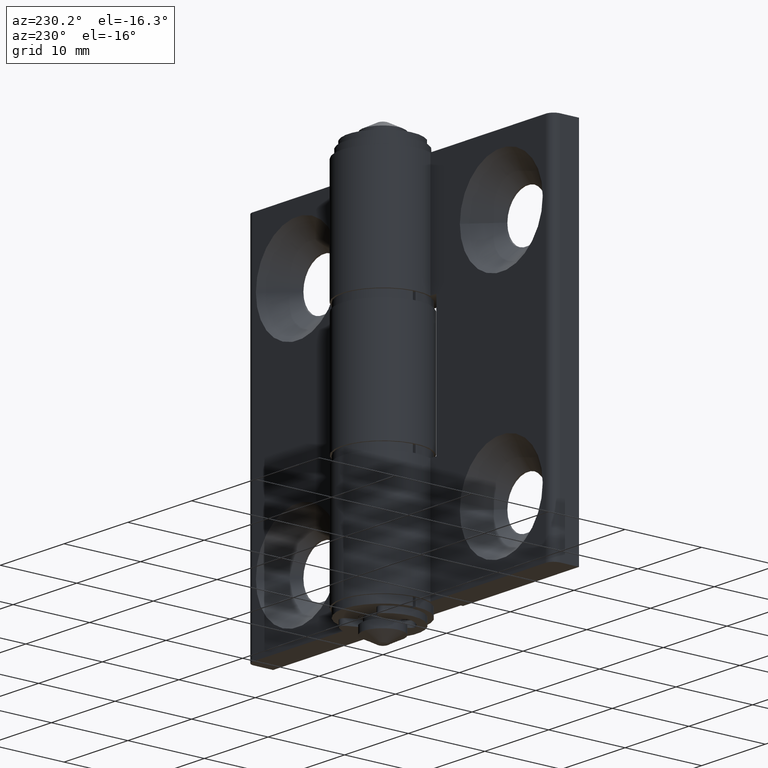
[diagram: clean part render]
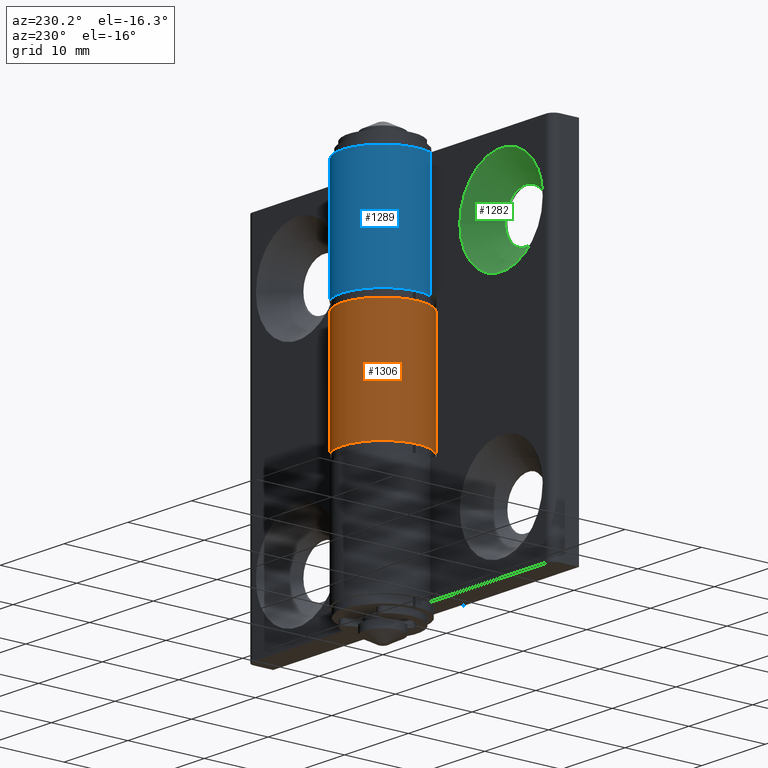
[diagram: same view with three faces highlighted in distinct colors, each labeled with its STEP entity id]
A machine part, auxiliary view with three faces highlighted in distinct colors.
Their STEP definitions:

[orange] entity #1306 — the highlighted cylindrical surface (partial cylindrical patch) has radius 5.35 mm, axis along (0, 0, 1).
#91=CYLINDRICAL_SURFACE('',#1422,5.35);
#188=FACE_OUTER_BOUND('',#293,.T.);
#293=EDGE_LOOP('',(#1052,#1053,#1054,#1055));
#370=CIRCLE('',#1396,5.35);
#372=CIRCLE('',#1399,5.35);
#469=LINE('',#2096,#561);
#477=LINE('',#2131,#569);
#561=VECTOR('',#1661,15.);
#569=VECTOR('',#1705,15.);
#644=VERTEX_POINT('',#2057);
#646=VERTEX_POINT('',#2060);
#650=VERTEX_POINT('',#2069);
#652=VERTEX_POINT('',#2073);
#778=EDGE_CURVE('',#646,#644,#370,.T.);
#785=EDGE_CURVE('',#650,#652,#372,.T.);
#796=EDGE_CURVE('',#644,#650,#469,.T.);
#811=EDGE_CURVE('',#652,#646,#477,.T.);
#1052=ORIENTED_EDGE('',*,*,#778,.T.);
#1053=ORIENTED_EDGE('',*,*,#796,.T.);
#1054=ORIENTED_EDGE('',*,*,#785,.T.);
#1055=ORIENTED_EDGE('',*,*,#811,.T.);
#1306=ADVANCED_FACE('',(#188),#91,.T.);
#1396=AXIS2_PLACEMENT_3D('',#2061,#1632,#1633);
#1399=AXIS2_PLACEMENT_3D('',#2075,#1643,#1644);
#1422=AXIS2_PLACEMENT_3D('',#2132,#1706,#1707);
#1632=DIRECTION('center_axis',(0.,0.,-1.));
#1633=DIRECTION('ref_axis',(0.915697100105861,-0.401869158878504,0.));
#1643=DIRECTION('center_axis',(0.,0.,1.));
#1644=DIRECTION('ref_axis',(0.915697100105861,-0.401869158878504,0.));
#1661=DIRECTION('',(0.,0.,-1.));
#1705=DIRECTION('',(0.,0.,1.));
#1706=DIRECTION('center_axis',(0.,0.,1.));
#1707=DIRECTION('ref_axis',(-0.546868741619731,0.837218358278921,0.));
#2057=CARTESIAN_POINT('',(4.89897948556636,-2.15,7.5));
#2060=CARTESIAN_POINT('',(9.82779056315751E-16,-5.35,7.5));
#2061=CARTESIAN_POINT('Origin',(0.,0.,7.5));
#2069=CARTESIAN_POINT('',(4.89897948556636,-2.15,-7.5));
#2073=CARTESIAN_POINT('',(9.82779056315751E-16,-5.35,-7.5));
#2075=CARTESIAN_POINT('Origin',(0.,0.,-7.5));
#2096=CARTESIAN_POINT('',(4.89897948556636,-2.15,0.));
#2131=CARTESIAN_POINT('',(9.82779056315751E-16,-5.35,0.));
#2132=CARTESIAN_POINT('Origin',(0.,0.,0.));

[blue] entity #1289 — the highlighted cylindrical surface (partial cylindrical patch) has radius 5.35 mm, axis along (0, 0, -1).
#86=CYLINDRICAL_SURFACE('',#1392,5.35);
#171=FACE_OUTER_BOUND('',#264,.T.);
#264=EDGE_LOOP('',(#974,#975,#976,#977));
#356=CIRCLE('',#1363,5.35);
#364=CIRCLE('',#1377,5.35);
#439=LINE('',#1993,#531);
#454=LINE('',#2052,#546);
#531=VECTOR('',#1555,15.);
#546=VECTOR('',#1622,15.);
#617=VERTEX_POINT('',#1973);
#619=VERTEX_POINT('',#1976);
#625=VERTEX_POINT('',#1991);
#636=VERTEX_POINT('',#2022);
#740=EDGE_CURVE('',#619,#617,#356,.T.);
#749=EDGE_CURVE('',#617,#625,#439,.T.);
#764=EDGE_CURVE('',#636,#625,#364,.T.);
#776=EDGE_CURVE('',#636,#619,#454,.T.);
#974=ORIENTED_EDGE('',*,*,#740,.T.);
#975=ORIENTED_EDGE('',*,*,#749,.T.);
#976=ORIENTED_EDGE('',*,*,#764,.F.);
#977=ORIENTED_EDGE('',*,*,#776,.T.);
#1289=ADVANCED_FACE('',(#171),#86,.T.);
#1363=AXIS2_PLACEMENT_3D('',#1977,#1542,#1543);
#1377=AXIS2_PLACEMENT_3D('',#2024,#1586,#1587);
#1392=AXIS2_PLACEMENT_3D('',#2053,#1623,#1624);
#1542=DIRECTION('center_axis',(0.,0.,-1.));
#1543=DIRECTION('ref_axis',(0.915697100105861,-0.401869158878504,0.));
#1555=DIRECTION('',(0.,0.,-1.));
#1586=DIRECTION('center_axis',(0.,0.,-1.));
#1587=DIRECTION('ref_axis',(0.915697100105861,-0.401869158878504,0.));
#1622=DIRECTION('',(0.,0.,1.));
#1623=DIRECTION('center_axis',(0.,0.,1.));
#1624=DIRECTION('ref_axis',(-0.546868741619731,0.837218358278921,0.));
#1973=CARTESIAN_POINT('',(4.89897948556636,-2.15,-8.5));
#1976=CARTESIAN_POINT('',(9.82779056315751E-16,-5.35,-8.5));
#1977=CARTESIAN_POINT('Origin',(0.,0.,-8.5));
#1991=CARTESIAN_POINT('',(4.89897948556636,-2.15,-23.5));
#1993=CARTESIAN_POINT('',(4.89897948556636,-2.15,0.));
#2022=CARTESIAN_POINT('',(1.11022302462516E-15,-5.35,-23.5));
#2024=CARTESIAN_POINT('Origin',(0.,0.,-23.5));
#2052=CARTESIAN_POINT('',(9.82779056315751E-16,-5.35,0.));
#2053=CARTESIAN_POINT('Origin',(0.,0.,0.));

[green] entity #1282 — the highlighted conical surface has half-angle 45 deg.
#75=CONICAL_SURFACE('',#1382,4.875,0.785398163397448);
#122=FACE_BOUND('',#253,.T.);
#164=FACE_OUTER_BOUND('',#252,.T.);
#252=EDGE_LOOP('',(#946));
#253=EDGE_LOOP('',(#947));
#359=CIRCLE('',#1367,6.5);
#367=CIRCLE('',#1383,3.25);
#627=VERTEX_POINT('',#1996);
#639=VERTEX_POINT('',#2032);
#751=EDGE_CURVE('',#627,#627,#359,.T.);
#767=EDGE_CURVE('',#639,#639,#367,.T.);
#946=ORIENTED_EDGE('',*,*,#767,.F.);
#947=ORIENTED_EDGE('',*,*,#751,.F.);
#1282=ADVANCED_FACE('',(#164,#122),#75,.F.);
#1367=AXIS2_PLACEMENT_3D('',#1997,#1558,#1559);
#1382=AXIS2_PLACEMENT_3D('',#2031,#1596,#1597);
#1383=AXIS2_PLACEMENT_3D('',#2033,#1598,#1599);
#1558=DIRECTION('center_axis',(0.,-1.,0.));
#1559=DIRECTION('ref_axis',(1.,0.,0.));
#1596=DIRECTION('center_axis',(0.,1.,0.));
#1597=DIRECTION('ref_axis',(1.,0.,0.));
#1598=DIRECTION('center_axis',(0.,1.,0.));
#1599=DIRECTION('ref_axis',(1.,0.,0.));
#1996=CARTESIAN_POINT('',(9.5,-2.15,-15.));
#1997=CARTESIAN_POINT('Origin',(16.,-2.15,-15.));
#2031=CARTESIAN_POINT('Origin',(16.,-3.775,-15.));
#2032=CARTESIAN_POINT('',(12.75,-5.4,-15.));
#2033=CARTESIAN_POINT('Origin',(16.,-5.4,-15.));